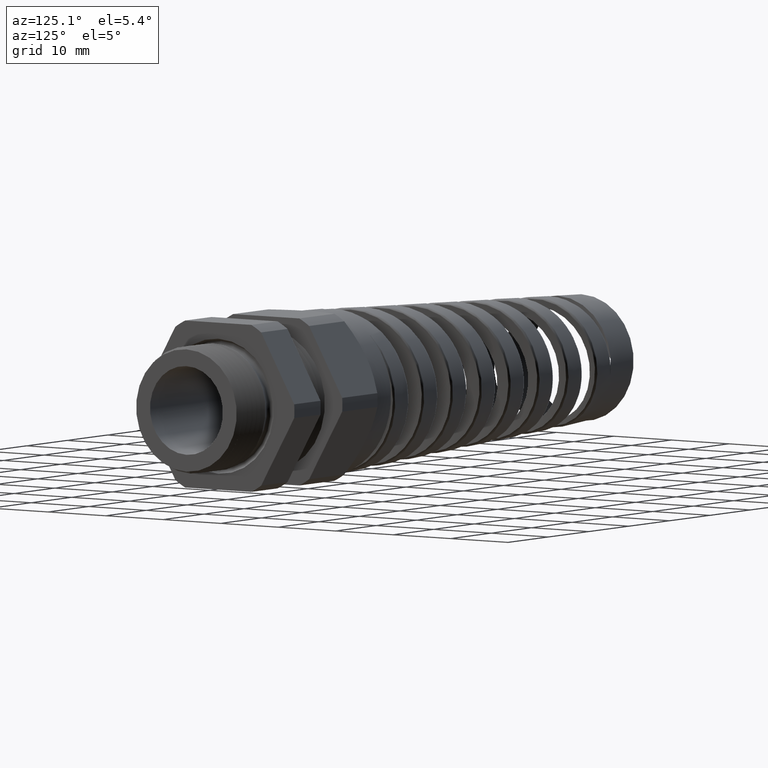
[diagram: clean part render]
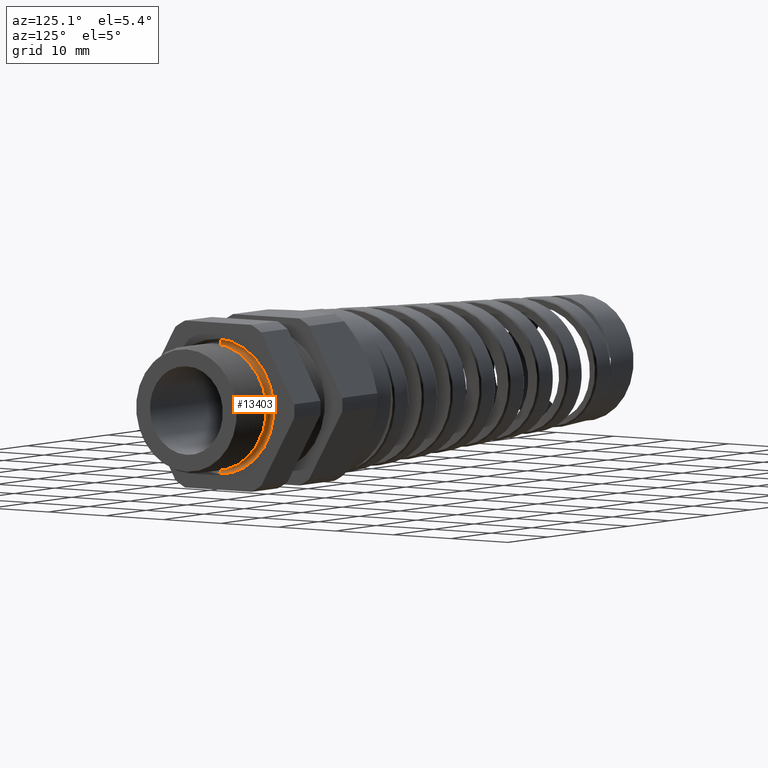
[diagram: same view with one face highlighted and labeled with its STEP entity id]
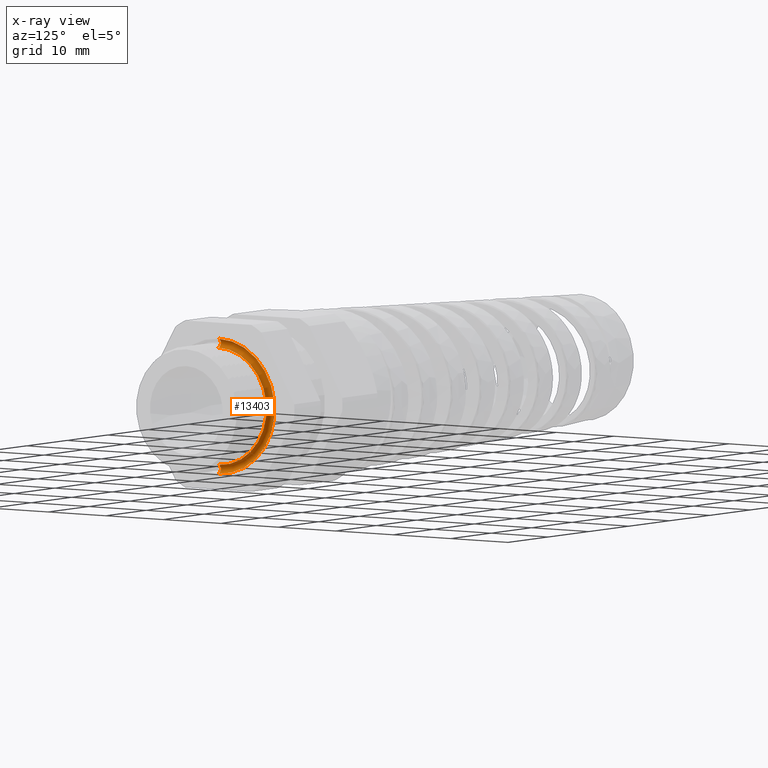
[diagram: x-ray of the same camera — body ghosted, the highlighted face saturated]
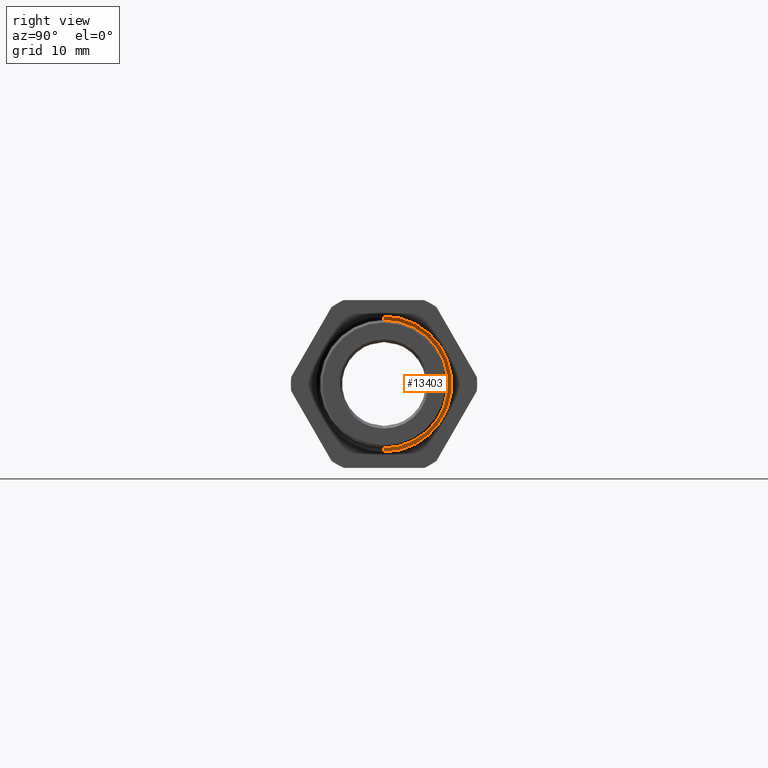
[diagram: same view with one face highlighted and labeled with its STEP entity id]
A machine part, auxiliary view. The second image highlights one B-rep face of the part: STEP entity #13403.
The next image is the same camera in x-ray: the body ghosted, the highlighted face saturated — about 0% of this face is hidden behind the body in this view.
A second angle (right view) of the same face is appended — the face is thin or edge-on in the first view.
In plain terms, the highlighted toroidal blend (fillet) surface has major radius 9.017 mm and minor (blend) radius 0.635 mm.
Its self-contained STEP definition (entity closure, byte-faithful):
#2394 = DIRECTION ( 'NONE',  ( 0.0000000000000000000, 0.0000000000000000000, -1.000000000000000000 ) ) ;
#2395 = DIRECTION ( 'NONE',  ( -1.000000000000000000, 0.0000000000000000000, 0.0000000000000000000 ) ) ;
#2396 = CARTESIAN_POINT ( 'NONE',  ( -0.3100000000000000000, 0.0000000000000000000, 0.0000000000000000000 ) ) ;
#2397 = AXIS2_PLACEMENT_3D ( 'NONE', #2396, #2395, #2394 ) ;
#2398 = CIRCLE ( 'NONE', #2397, 0.3799999999999998900 ) ;
#2757 = CARTESIAN_POINT ( 'NONE',  ( -0.3100000000000000000, 4.041334437186264600E-017, 0.3299999999999999000 ) ) ;
#2758 = DIRECTION ( 'NONE',  ( 0.0000000000000000000, 0.0000000000000000000, -1.000000000000000000 ) ) ;
#2759 = DIRECTION ( 'NONE',  ( 1.000000000000000000, 0.0000000000000000000, 0.0000000000000000000 ) ) ;
#2760 = CARTESIAN_POINT ( 'NONE',  ( -0.3100000000000000000, 0.0000000000000000000, 0.0000000000000000000 ) ) ;
#2761 = AXIS2_PLACEMENT_3D ( 'NONE', #2760, #2759, #2758 ) ;
#2762 = CIRCLE ( 'NONE', #2761, 0.3299999999999999000 ) ;
#2763 = CARTESIAN_POINT ( 'NONE',  ( -0.3100000000000000000, 0.0000000000000000000, -0.3299999999999999000 ) ) ;
#4199 = DIRECTION ( 'NONE',  ( 0.0000000000000000000, 0.0000000000000000000, -1.000000000000000000 ) ) ;
#4200 = DIRECTION ( 'NONE',  ( 1.000000000000000000, 0.0000000000000000000, 0.0000000000000000000 ) ) ;
#4201 = CARTESIAN_POINT ( 'NONE',  ( -0.3100000000000000000, 0.0000000000000000000, 0.0000000000000000000 ) ) ;
#4202 = AXIS2_PLACEMENT_3D ( 'NONE', #4201, #4200, #4199 ) ;
#4203 = TOROIDAL_SURFACE ( 'NONE', #4202, 0.3549999999999999300, 0.02500000000000002900 ) ;
#4204 = FACE_OUTER_BOUND ( 'NONE', #13426, .T. ) ;
#4237 = CARTESIAN_POINT ( 'NONE',  ( -0.3100000000000000000, 0.0000000000000000000, -0.3799999999999998900 ) ) ;
#4238 = CARTESIAN_POINT ( 'NONE',  ( -0.3100000000000000000, 4.653657836759941100E-017, 0.3799999999999998900 ) ) ;
#4251 = DIRECTION ( 'NONE',  ( 0.0000000000000000000, 0.0000000000000000000, -1.000000000000000000 ) ) ;
#4252 = DIRECTION ( 'NONE',  ( 0.0000000000000000000, -1.000000000000000000, 0.0000000000000000000 ) ) ;
#4253 = CARTESIAN_POINT ( 'NONE',  ( -0.3100000000000000000, 0.0000000000000000000, -0.3549999999999999300 ) ) ;
#4254 = AXIS2_PLACEMENT_3D ( 'NONE', #4253, #4252, #4251 ) ;
#4255 = CIRCLE ( 'NONE', #4254, 0.02500000000000000500 ) ;
#8016 = EDGE_CURVE ( 'NONE', #13415, #13416, #2398, .T. ) ;
#8236 = VERTEX_POINT ( 'NONE', #2763 ) ;
#8238 = EDGE_CURVE ( 'NONE', #8236, #8239, #2762, .T. ) ;
#8239 = VERTEX_POINT ( 'NONE', #2757 ) ;
#12811 = CARTESIAN_POINT ( 'NONE',  ( -0.3100000000000000000, 4.347496136973102900E-017, 0.3549999999999999300 ) ) ;
#12868 = DIRECTION ( 'NONE',  ( 0.0000000000000000000, 1.224646799147354700E-016, 1.000000000000000000 ) ) ;
#12869 = DIRECTION ( 'NONE',  ( 0.0000000000000000000, 1.000000000000000000, -1.224646799147353200E-016 ) ) ;
#12870 = AXIS2_PLACEMENT_3D ( 'NONE', #12811, #12869, #12868 ) ;
#12871 = CIRCLE ( 'NONE', #12870, 0.02500000000000000500 ) ;
#13403 = ADVANCED_FACE ( 'NONE', ( #4204 ), #4203, .F. ) ;
#13405 = EDGE_CURVE ( 'NONE', #8236, #13416, #4255, .T. ) ;
#13415 = VERTEX_POINT ( 'NONE', #4238 ) ;
#13416 = VERTEX_POINT ( 'NONE', #4237 ) ;
#13425 = ORIENTED_EDGE ( 'NONE', *, *, #14317, .F. ) ;
#13426 = EDGE_LOOP ( 'NONE', ( #13427, #13428, #13430, #13425 ) ) ;
#13427 = ORIENTED_EDGE ( 'NONE', *, *, #8238, .F. ) ;
#13428 = ORIENTED_EDGE ( 'NONE', *, *, #13405, .T. ) ;
#13430 = ORIENTED_EDGE ( 'NONE', *, *, #8016, .F. ) ;
#14317 = EDGE_CURVE ( 'NONE', #8239, #13415, #12871, .T. ) ;